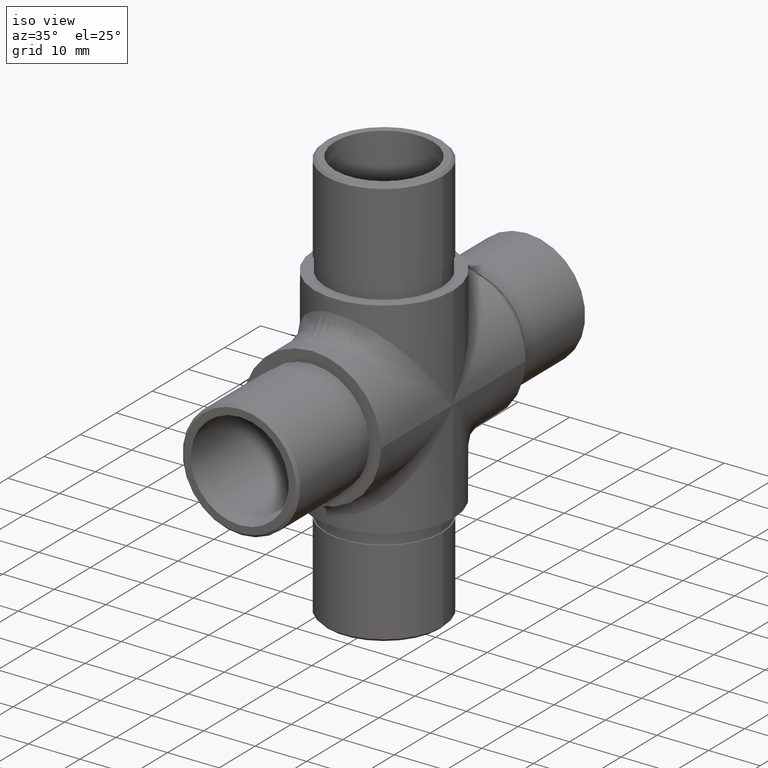
[diagram: clean part render]
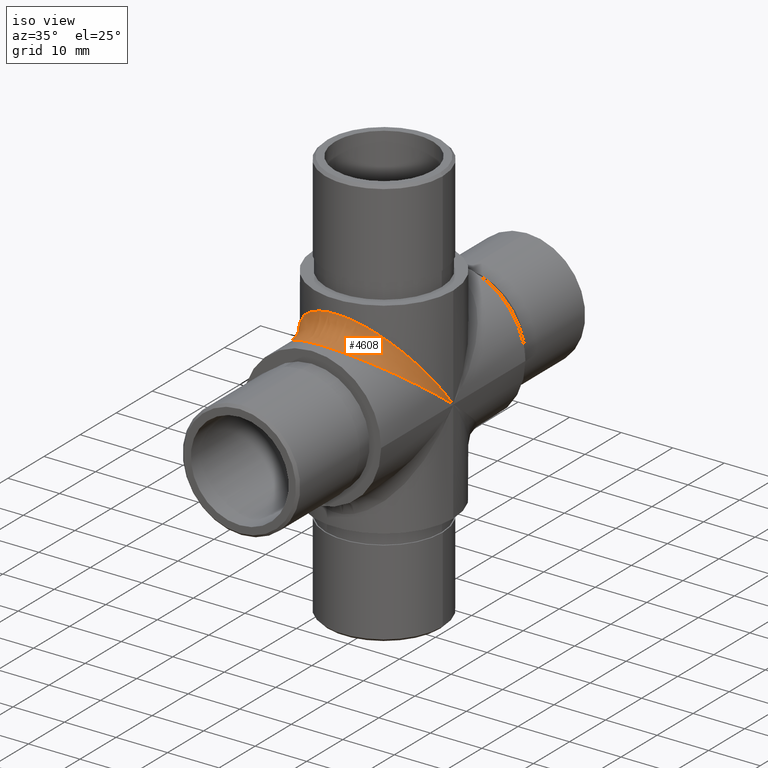
[diagram: same view with one face highlighted and labeled with its STEP entity id]
A machine part, iso view. The second image highlights one B-rep face of the part: STEP entity #4608.
In plain terms, the highlighted face is a freeform B-spline surface patch.
Its self-contained STEP definition (entity closure, byte-faithful):
#313 =( BOUNDED_CURVE ( )  B_SPLINE_CURVE ( 3, ( #3591, #8476, #11457, #10531 ),
 .UNSPECIFIED., .F., .T. ) 
 B_SPLINE_CURVE_WITH_KNOTS ( ( 4, 4 ),
 ( 1.570796326794896600, 4.712388980384689700 ),
 .UNSPECIFIED. ) 
 CURVE ( )  GEOMETRIC_REPRESENTATION_ITEM ( )  RATIONAL_B_SPLINE_CURVE ( ( 1.000000000000000000, 0.3333333333333333700, 0.3333333333333333700, 1.000000000000000000 ) ) 
 REPRESENTATION_ITEM ( '' )  );
#595 = CARTESIAN_POINT ( 'NONE',  ( -0.8803004409928265600, -13.44999999999999800, 17.44999999999999600 ) ) ;
#642 = CARTESIAN_POINT ( 'NONE',  ( 10.13305261837928700, -11.53142679792899000, 8.888119795538841600 ) ) ;
#690 = CARTESIAN_POINT ( 'NONE',  ( -6.740476567636093800, -11.67233500666267400, 15.14366140269588000 ) ) ;
#732 = CARTESIAN_POINT ( 'NONE',  ( 13.01982392487325100, -4.524480820171247000, 3.487350546206243500 ) ) ;
#1112 = FACE_OUTER_BOUND ( 'NONE', #10547, .T. ) ;
#1483 = CARTESIAN_POINT ( 'NONE',  ( 13.44999999999859600, -1.011202245689473100, 1.011202245689473100 ) ) ;
#1564 = CARTESIAN_POINT ( 'NONE',  ( 7.826289490386007400, -11.06871699549510200, 11.06871699549510200 ) ) ;
#1605 = CARTESIAN_POINT ( 'NONE',  ( 12.76305610663328200, -5.622663238731845100, 4.333800605211698600 ) ) ;
#1655 = CARTESIAN_POINT ( 'NONE',  ( 4.333800605359766900, -12.76305610657195200, 16.55876052488352500 ) ) ;
#1693 = CARTESIAN_POINT ( 'NONE',  ( -8.204362700591183000, -13.87462806666295900, 10.69419756427579500 ) ) ;
#1734 = CARTESIAN_POINT ( 'NONE',  ( 8.888119795538823800, -13.14659986548153700, 10.13305261837930100 ) ) ;
#1776 = CARTESIAN_POINT ( 'NONE',  ( -12.08930331792002900, -7.732988550809640300, 5.960383725409925200 ) ) ;
#1812 = CARTESIAN_POINT ( 'NONE',  ( -8.888119795538838000, -10.13305261837928500, 13.14659986548151800 ) ) ;
#1844 = CARTESIAN_POINT ( 'NONE',  ( -12.76305610663356700, -4.333800605211020100, 5.622663238732033400 ) ) ;
#1888 = CARTESIAN_POINT ( 'NONE',  ( -11.70026303290024600, -6.767469909088373600, 6.767469909088373600 ) ) ;
#2456 = CARTESIAN_POINT ( 'NONE',  ( 13.44999999999999800, -0.8803104272429715900, 1.142112784787350000 ) ) ;
#2459 = CARTESIAN_POINT ( 'NONE',  ( 13.45000000000000100, 0.0000000000000000000, 0.0000000000000000000 ) ) ;
#2547 = CARTESIAN_POINT ( 'NONE',  ( 4.333800605359766900, -16.55876052488352500, 12.76305610657195200 ) ) ;
#2592 = CARTESIAN_POINT ( 'NONE',  ( -0.6185010550564892200, -13.44999999999999800, 13.44999999999999800 ) ) ;
#2635 = CARTESIAN_POINT ( 'NONE',  ( 10.69419756423098800, -8.204362700658244000, 10.64432186814120500 ) ) ;
#2678 = CARTESIAN_POINT ( 'NONE',  ( -7.054827041782868200, -11.57092578936800300, 11.57092578936800300 ) ) ;
#2728 = CARTESIAN_POINT ( 'NONE',  ( 12.89222839911110800, -3.997100754241533300, 3.997100754241533300 ) ) ;
#2763 = CARTESIAN_POINT ( 'NONE',  ( -13.33585166001859300, -2.028616801334055100, 2.028616801334055100 ) ) ;
#2885 = CARTESIAN_POINT ( 'NONE',  ( -7.826289490382230900, -11.06871699549390400, 11.06871699549390400 ) ) ;
#3565 = CARTESIAN_POINT ( 'NONE',  ( 8.204362700590154500, -10.69419756427648400, 13.87462806666521000 ) ) ;
#3591 = CARTESIAN_POINT ( 'NONE',  ( -13.45000000000000100, 0.0000000000000000000, 0.0000000000000000000 ) ) ;
#3609 = CARTESIAN_POINT ( 'NONE',  ( -3.487350545992414600, -13.01982392491578500, 16.89189051968613600 ) ) ;
#3656 = CARTESIAN_POINT ( 'NONE',  ( -5.506249729538666300, -12.38324776086841800, 12.38324776086841800 ) ) ;
#3697 = CARTESIAN_POINT ( 'NONE',  ( 12.08930331792032200, -7.732988550809795700, 5.960383725409220900 ) ) ;
#3740 = CARTESIAN_POINT ( 'NONE',  ( 13.01982392487325100, -3.487350546206243100, 4.524480820171247000 ) ) ;
#3778 = CARTESIAN_POINT ( 'NONE',  ( -10.13305261837929700, -11.53142679792897100, 8.888119795538825600 ) ) ;
#3893 = CARTESIAN_POINT ( 'NONE',  ( -13.44999999999999800, -2.838118957023990100E-015, 2.838118957023990100E-015 ) ) ;
#3937 = EDGE_CURVE ( 'NONE', #12795, #6836, #313, .T. ) ;
#4406 = EDGE_CURVE ( 'NONE', #6836, #12795, #6074, .T. ) ;
#4443 = CARTESIAN_POINT ( 'NONE',  ( 13.44999999999999800, 1.068504332256065400E-015, -8.235749724265947000E-016 ) ) ;
#4560 = CARTESIAN_POINT ( 'NONE',  ( 6.740476567637159600, -15.14366140269359600, 11.67233500666196700 ) ) ;
#4608 = ADVANCED_FACE ( 'NONE', ( #1112 ), #5110, .F. ) ;
#4609 = CARTESIAN_POINT ( 'NONE',  ( -4.333800605359729600, -12.76305610657196100, 16.55876052488354200 ) ) ;
#4652 = CARTESIAN_POINT ( 'NONE',  ( 3.251151502455798400, -13.12231531941202800, 13.12231531941202800 ) ) ;
#4688 = CARTESIAN_POINT ( 'NONE',  ( 9.962209205126949700, -9.168816684697246100, 9.168816684697246100 ) ) ;
#4735 = CARTESIAN_POINT ( 'NONE',  ( 5.960383725261179300, -12.08930331798164200, 15.68463515976036000 ) ) ;
#4770 = CARTESIAN_POINT ( 'NONE',  ( -13.36330011797391600, -2.284171418190777700, 1.760579116026230300 ) ) ;
#4809 = CARTESIAN_POINT ( 'NONE',  ( -13.44999999999999800, -3.205512996768196000E-015, 2.470724917279784300E-015 ) ) ;
#4850 = CARTESIAN_POINT ( 'NONE',  ( -12.55744004400008700, -4.959083210621108700, 4.959083210621108700 ) ) ;
#4914 = CARTESIAN_POINT ( 'NONE',  ( -13.44999999999999000, -34.89999999999998400, 26.90000000000000900 ) ) ;
#5110 =( BOUNDED_SURFACE ( )  B_SPLINE_SURFACE ( 3, 2, ( 
 ( #4443, #5418, #6421 ),
 ( #7436, #1483, #2456 ),
 ( #9440, #11701, #9699 ),
 ( #732, #2728, #3740 ),
 ( #1605, #9659, #10716 ),
 ( #3697, #5639, #10677 ),
 ( #9525, #8676, #9575 ),
 ( #7577, #4688, #2635 ),
 ( #642, #7702, #7533 ),
 ( #1734, #1564, #8710 ),
 ( #7622, #6636, #3565 ),
 ( #4560, #5593, #6593 ),
 ( #10630, #12666, #4735 ),
 ( #2547, #4652, #1655 ),
 ( #10548, #5686, #12628 ),
 ( #11559, #11656, #11739 ),
 ( #5551, #12583, #6547 ),
 ( #8577, #2592, #595 ),
 ( #12713, #5719, #6677 ),
 ( #12756, #6722, #3609 ),
 ( #8535, #10589, #4609 ),
 ( #11611, #8620, #7660 ),
 ( #9623, #3656, #690 ),
 ( #1693, #2678, #8907 ),
 ( #7786, #2885, #1812 ),
 ( #3778, #10846, #11818 ),
 ( #7907, #9906, #5759 ),
 ( #10756, #10798, #7749 ),
 ( #1776, #1888, #7829 ),
 ( #11781, #4850, #1844 ),
 ( #11904, #6799, #8753 ),
 ( #4770, #2763, #10884 ),
 ( #9748, #12793, #8864 ),
 ( #4809, #3893, #11864 ) ),
 .UNSPECIFIED., .F., .F., .T. ) 
 B_SPLINE_SURFACE_WITH_KNOTS ( ( 4, 2, 2, 2, 2, 2, 2, 2, 2, 2, 2, 2, 2, 2, 2, 2, 4 ),
 ( 3, 3 ),
 ( 1.570796326794896600, 1.767145867644258600, 1.963495408493620700, 2.159844949342982500, 2.356194490192344800, 2.552544031041707100, 2.748893571891069000, 2.945243112740430800, 3.141592653589793100, 3.337942194439155400, 3.534291735288517300, 3.730641276137879100, 3.926990816987241400, 4.123340357836603700, 4.319689898685965100, 4.516039439535327400, 4.712388980384689700 ),
 ( 0.0000000000000000000, 1.000000000000000000 ),
 .UNSPECIFIED. ) 
 GEOMETRIC_REPRESENTATION_ITEM ( )  RATIONAL_B_SPLINE_SURFACE ( (
 ( 1.000000000000000000, 1.000000000000000000, 1.000000000000000000),
 ( 1.000000000000000000, 1.000009746410218200, 1.000000000000000000),
 ( 1.000000000000000000, 0.9967613244613894300, 1.000000000000000000),
 ( 1.000000000000000000, 0.9841171504863514000, 1.000000000000000000),
 ( 1.000000000000000000, 0.9747108043652756800, 1.000000000000000000),
 ( 1.000000000000000000, 0.9506740353970371000, 1.000000000000000000),
 ( 1.000000000000000000, 0.9360421842734941700, 1.000000000000000000),
 ( 1.000000000000000000, 0.9031650994129020200, 1.000000000000000000),
 ( 1.000000000000000000, 0.8849191471365555100, 1.000000000000000000),
 ( 1.000000000000000000, 0.8471316604323212400, 1.000000000000000000),
 ( 1.000000000000000000, 0.8275942695996153500, 1.000000000000000000),
 ( 1.000000000000000000, 0.7902180086437263800, 1.000000000000000000),
 ( 1.000000000000000000, 0.7723968218214872800, 1.000000000000000000),
 ( 1.000000000000000000, 0.7418334178757176600, 1.000000000000000000),
 ( 1.000000000000000000, 0.7291288940217117700, 1.000000000000000000),
 ( 1.000000000000000000, 0.7117460025216049100, 1.000000000000000000),
 ( 1.000000000000000000, 0.7071067811865475700, 1.000000000000000000),
 ( 1.000000000000000000, 0.7071067811865475700, 1.000000000000000000),
 ( 1.000000000000000000, 0.7117460025216694200, 1.000000000000000000),
 ( 1.000000000000000000, 0.7291288940216470400, 1.000000000000000000),
 ( 1.000000000000000000, 0.7418334178756490500, 1.000000000000000000),
 ( 1.000000000000000000, 0.7723968218215543400, 1.000000000000000000),
 ( 1.000000000000000000, 0.7902180086437260400, 1.000000000000000000),
 ( 1.000000000000000000, 0.8275942695996150200, 1.000000000000000000),
 ( 1.000000000000000000, 0.8471316604322441900, 1.000000000000000000),
 ( 1.000000000000000000, 0.8849191471366336700, 1.000000000000000000),
 ( 1.000000000000000000, 0.9031650994129008000, 1.000000000000000000),
 ( 1.000000000000000000, 0.9360421842734943900, 1.000000000000000000),
 ( 1.000000000000000000, 0.9506740353970140100, 1.000000000000000000),
 ( 1.000000000000000000, 0.9747108043652983300, 1.000000000000000000),
 ( 1.000000000000000000, 0.9841171504863854800, 1.000000000000000000),
 ( 1.000000000000000000, 0.9967613244613549000, 1.000000000000000000),
 ( 1.000000000000000000, 1.000009746410244000, 1.000000000000000000),
 ( 1.000000000000000000, 1.000000000000000000, 1.000000000000000000) ) ) 
 REPRESENTATION_ITEM ( '' )  SURFACE ( )  );
#5213 = ORIENTED_EDGE ( 'NONE', *, *, #4406, .F. ) ;
#5418 = CARTESIAN_POINT ( 'NONE',  ( 13.44999999999999800, 9.460396523413300500E-016, -9.460396523413300500E-016 ) ) ;
#5551 = CARTESIAN_POINT ( 'NONE',  ( 0.8803004409928059100, -17.44999999999999600, 13.44999999999999800 ) ) ;
#5593 = CARTESIAN_POINT ( 'NONE',  ( 5.506249729540424900, -12.38324776086609100, 12.38324776086609100 ) ) ;
#5639 = CARTESIAN_POINT ( 'NONE',  ( 11.70026303290070600, -6.767469909088388700, 6.767469909088388700 ) ) ;
#5686 = CARTESIAN_POINT ( 'NONE',  ( 2.554661403383834600, -13.25396271894251900, 13.25396271894251900 ) ) ;
#5719 = CARTESIAN_POINT ( 'NONE',  ( -1.231024211893977400, -13.41883242087744700, 13.41883242087744700 ) ) ;
#5759 = CARTESIAN_POINT ( 'NONE',  ( -10.69419756422981700, -8.204362700659993700, 10.64432186814177700 ) ) ;
#6074 =( BOUNDED_CURVE ( )  B_SPLINE_CURVE ( 3, ( #6087, #11035, #4914, #12931 ),
 .UNSPECIFIED., .F., .F. ) 
 B_SPLINE_CURVE_WITH_KNOTS ( ( 4, 4 ),
 ( 1.570796326794896800, 4.712388980384689700 ),
 .UNSPECIFIED. ) 
 CURVE ( )  GEOMETRIC_REPRESENTATION_ITEM ( )  RATIONAL_B_SPLINE_CURVE ( ( 1.000000000000000000, 0.3333333333333333700, 0.3333333333333333700, 1.000000000000000000 ) ) 
 REPRESENTATION_ITEM ( '' )  );
#6087 = CARTESIAN_POINT ( 'NONE',  ( 13.45000000000000100, 0.0000000000000000000, 0.0000000000000000000 ) ) ;
#6421 = CARTESIAN_POINT ( 'NONE',  ( 13.44999999999999800, 8.235749724265947000E-016, -1.068504332256065400E-015 ) ) ;
#6547 = CARTESIAN_POINT ( 'NONE',  ( 0.8803004409928059100, -13.44999999999999800, 17.44999999999999600 ) ) ;
#6593 = CARTESIAN_POINT ( 'NONE',  ( 6.740476567637159600, -11.67233500666196700, 15.14366140269359600 ) ) ;
#6636 = CARTESIAN_POINT ( 'NONE',  ( 7.054827041781226000, -11.57092578937021100, 11.57092578937021100 ) ) ;
#6677 = CARTESIAN_POINT ( 'NONE',  ( -1.760579116241412200, -13.36330011793111400, 17.33751576638660900 ) ) ;
#6722 = CARTESIAN_POINT ( 'NONE',  ( -2.554661403383129900, -13.25396271894051900, 13.25396271894051900 ) ) ;
#6799 = CARTESIAN_POINT ( 'NONE',  ( -12.89222839910393100, -3.997100754241738900, 3.997100754241738900 ) ) ;
#6836 = VERTEX_POINT ( 'NONE', #2459 ) ;
#7330 = CARTESIAN_POINT ( 'NONE',  ( -13.45000000000000100, 0.0000000000000000000, 0.0000000000000000000 ) ) ;
#7436 = CARTESIAN_POINT ( 'NONE',  ( 13.44999999999999800, -1.142112784787350000, 0.8803104272429715900 ) ) ;
#7533 = CARTESIAN_POINT ( 'NONE',  ( 10.13305261837928700, -8.888119795538841600, 11.53142679792899000 ) ) ;
#7577 = CARTESIAN_POINT ( 'NONE',  ( 10.69419756423098800, -10.64432186814120500, 8.204362700658244000 ) ) ;
#7622 = CARTESIAN_POINT ( 'NONE',  ( 8.204362700590154500, -13.87462806666521000, 10.69419756427648400 ) ) ;
#7660 = CARTESIAN_POINT ( 'NONE',  ( -5.960383725261143800, -12.08930331798165800, 15.68463515976037700 ) ) ;
#7702 = CARTESIAN_POINT ( 'NONE',  ( 9.277602110783314900, -9.864348740864208800, 9.864348740864208800 ) ) ;
#7749 = CARTESIAN_POINT ( 'NONE',  ( -11.67233500670862900, -6.740476567567323100, 8.745079264242363600 ) ) ;
#7786 = CARTESIAN_POINT ( 'NONE',  ( -8.888119795538838000, -13.14659986548151800, 10.13305261837928500 ) ) ;
#7829 = CARTESIAN_POINT ( 'NONE',  ( -12.08930331792002900, -5.960383725409925200, 7.732988550809640300 ) ) ;
#7907 = CARTESIAN_POINT ( 'NONE',  ( -10.69419756422981700, -10.64432186814177700, 8.204362700659993700 ) ) ;
#8476 = CARTESIAN_POINT ( 'NONE',  ( -13.44999999999999900, -26.89999999999999900, 34.89999999999998400 ) ) ;
#8535 = CARTESIAN_POINT ( 'NONE',  ( -4.333800605359729600, -16.55876052488354200, 12.76305610657196100 ) ) ;
#8577 = CARTESIAN_POINT ( 'NONE',  ( -0.8803004409928265600, -17.44999999999999600, 13.44999999999999800 ) ) ;
#8620 = CARTESIAN_POINT ( 'NONE',  ( -4.733780939929412000, -12.68303839724656600, 12.68303839724656600 ) ) ;
#8676 = CARTESIAN_POINT ( 'NONE',  ( 11.16885367848228600, -7.620430911807797100, 7.620430911807797100 ) ) ;
#8710 = CARTESIAN_POINT ( 'NONE',  ( 8.888119795538823800, -10.13305261837930100, 13.14659986548153700 ) ) ;
#8753 = CARTESIAN_POINT ( 'NONE',  ( -13.01982392487296800, -3.487350546207652200, 4.524480820172141400 ) ) ;
#8864 = CARTESIAN_POINT ( 'NONE',  ( -13.44999999999999800, -0.8803104272436990100, 1.142112784788293700 ) ) ;
#8907 = CARTESIAN_POINT ( 'NONE',  ( -8.204362700591183000, -10.69419756427579500, 13.87462806666295900 ) ) ;
#9440 = CARTESIAN_POINT ( 'NONE',  ( 13.36330011797364200, -2.284171418191602900, 1.760579116027585000 ) ) ;
#9525 = CARTESIAN_POINT ( 'NONE',  ( 11.67233500670748300, -8.745079264242891200, 6.740476567569037200 ) ) ;
#9575 = CARTESIAN_POINT ( 'NONE',  ( 11.67233500670748300, -6.740476567569037200, 8.745079264242891200 ) ) ;
#9623 = CARTESIAN_POINT ( 'NONE',  ( -6.740476567636093800, -15.14366140269588000, 11.67233500666267400 ) ) ;
#9659 = CARTESIAN_POINT ( 'NONE',  ( 12.55744004399967300, -4.959083210621025200, 4.959083210621025200 ) ) ;
#9699 = CARTESIAN_POINT ( 'NONE',  ( 13.36330011797364200, -1.760579116027585400, 2.284171418191602900 ) ) ;
#9748 = CARTESIAN_POINT ( 'NONE',  ( -13.44999999999999800, -1.142112784788293700, 0.8803104272436990100 ) ) ;
#9906 = CARTESIAN_POINT ( 'NONE',  ( -9.962209205123373900, -9.168816684697338500, 9.168816684697338500 ) ) ;
#10531 = CARTESIAN_POINT ( 'NONE',  ( 13.45000000000000100, 0.0000000000000000000, 0.0000000000000000000 ) ) ;
#10547 = EDGE_LOOP ( 'NONE', ( #10641, #5213 ) ) ;
#10548 = CARTESIAN_POINT ( 'NONE',  ( 3.487350545992534000, -16.89189051968815000, 13.01982392491575900 ) ) ;
#10589 = CARTESIAN_POINT ( 'NONE',  ( -3.251151502456236700, -13.12231531941097300, 13.12231531941097300 ) ) ;
#10630 = CARTESIAN_POINT ( 'NONE',  ( 5.960383725261179300, -15.68463515976036000, 12.08930331798164200 ) ) ;
#10641 = ORIENTED_EDGE ( 'NONE', *, *, #3937, .F. ) ;
#10677 = CARTESIAN_POINT ( 'NONE',  ( 12.08930331792032200, -5.960383725409220900, 7.732988550809795700 ) ) ;
#10716 = CARTESIAN_POINT ( 'NONE',  ( 12.76305610663328200, -4.333800605211698600, 5.622663238731845100 ) ) ;
#10756 = CARTESIAN_POINT ( 'NONE',  ( -11.67233500670862900, -8.745079264242363600, 6.740476567567323100 ) ) ;
#10798 = CARTESIAN_POINT ( 'NONE',  ( -11.16885367848571200, -7.620430911807750000, 7.620430911807750000 ) ) ;
#10846 = CARTESIAN_POINT ( 'NONE',  ( -9.277602110786826700, -9.864348740865430900, 9.864348740865430900 ) ) ;
#10884 = CARTESIAN_POINT ( 'NONE',  ( -13.36330011797391600, -1.760579116026230300, 2.284171418190777700 ) ) ;
#11035 = CARTESIAN_POINT ( 'NONE',  ( 13.44999999999999400, -34.89999999999998400, 26.90000000000000900 ) ) ;
#11457 = CARTESIAN_POINT ( 'NONE',  ( 13.44999999999999000, -26.90000000000000900, 34.89999999999998400 ) ) ;
#11559 = CARTESIAN_POINT ( 'NONE',  ( 1.760579116241333300, -17.33751576638458000, 13.36330011793112900 ) ) ;
#11611 = CARTESIAN_POINT ( 'NONE',  ( -5.960383725261143800, -15.68463515976037700, 12.08930331798165800 ) ) ;
#11656 = CARTESIAN_POINT ( 'NONE',  ( 1.231024211893166500, -13.41883242087540800, 13.41883242087540800 ) ) ;
#11701 = CARTESIAN_POINT ( 'NONE',  ( 13.33585166001152800, -2.028616801334266500, 2.028616801334266500 ) ) ;
#11739 = CARTESIAN_POINT ( 'NONE',  ( 1.760579116241333300, -13.36330011793112900, 17.33751576638458000 ) ) ;
#11781 = CARTESIAN_POINT ( 'NONE',  ( -12.76305610663356700, -5.622663238732033400, 4.333800605211020100 ) ) ;
#11818 = CARTESIAN_POINT ( 'NONE',  ( -10.13305261837929700, -8.888119795538825600, 11.53142679792897100 ) ) ;
#11864 = CARTESIAN_POINT ( 'NONE',  ( -13.44999999999999800, -2.470724917279784300E-015, 3.205512996768196000E-015 ) ) ;
#11904 = CARTESIAN_POINT ( 'NONE',  ( -13.01982392487296800, -4.524480820172141400, 3.487350546207652200 ) ) ;
#12583 = CARTESIAN_POINT ( 'NONE',  ( 0.6185010550564746800, -13.44999999999999800, 13.44999999999999800 ) ) ;
#12628 = CARTESIAN_POINT ( 'NONE',  ( 3.487350545992534000, -13.01982392491575900, 16.89189051968815000 ) ) ;
#12666 = CARTESIAN_POINT ( 'NONE',  ( 4.733780939930030100, -12.68303839724550400, 12.68303839724550400 ) ) ;
#12713 = CARTESIAN_POINT ( 'NONE',  ( -1.760579116241411900, -17.33751576638660900, 13.36330011793111400 ) ) ;
#12756 = CARTESIAN_POINT ( 'NONE',  ( -3.487350545992414600, -16.89189051968613600, 13.01982392491578500 ) ) ;
#12793 = CARTESIAN_POINT ( 'NONE',  ( -13.44999999999859400, -1.011202245689638300, 1.011202245689638300 ) ) ;
#12795 = VERTEX_POINT ( 'NONE', #7330 ) ;
#12931 = CARTESIAN_POINT ( 'NONE',  ( -13.45000000000000100, 0.0000000000000000000, 0.0000000000000000000 ) ) ;